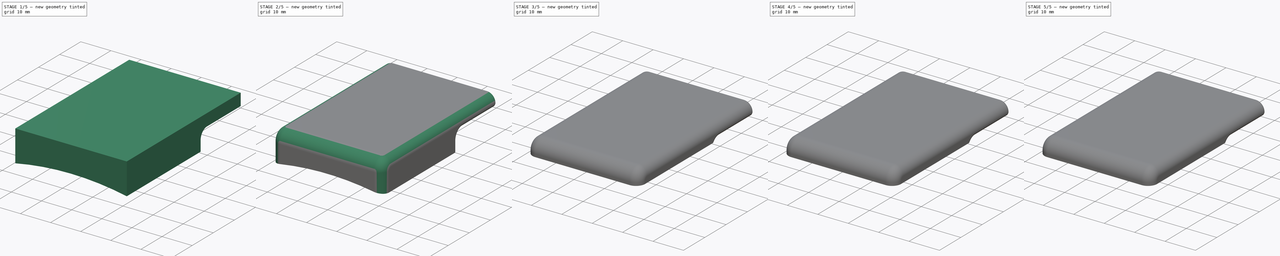
[diagram: build sequence overview — one tinted view per stage of 5, left to right]
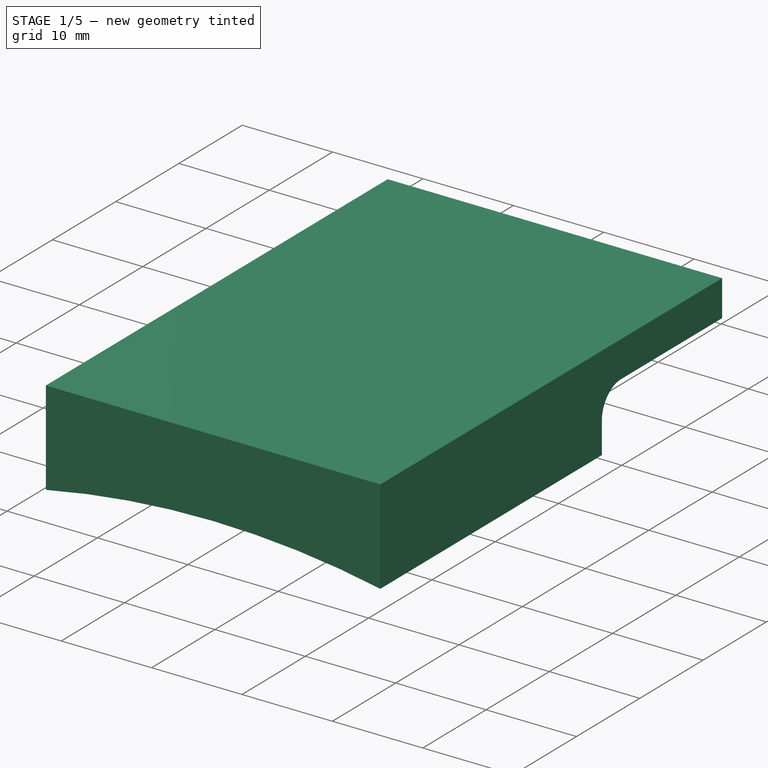
[diagram: stage 1 of 5 — iso view after this stage's code; geometry added in this stage tinted green]
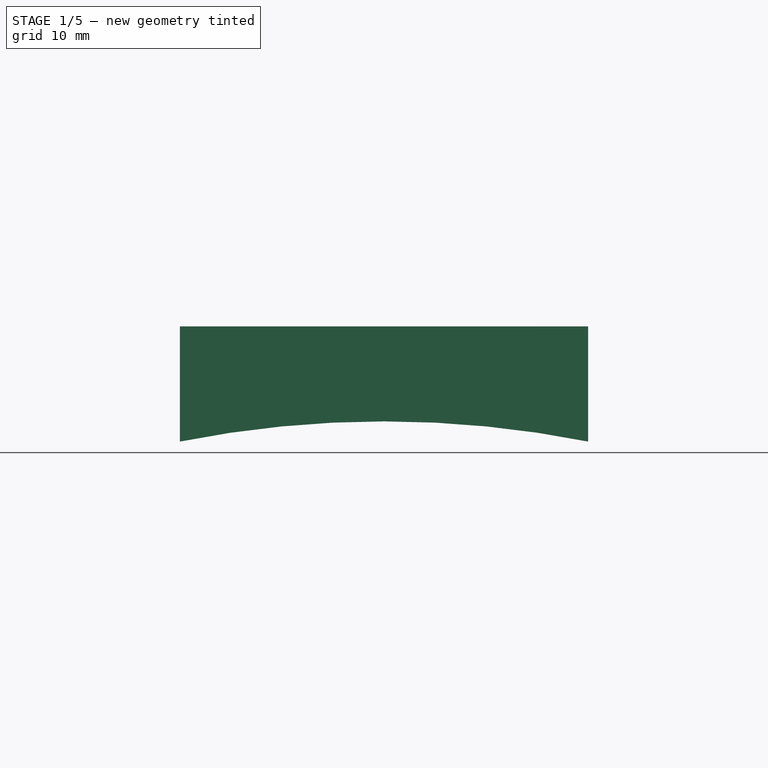
[diagram: stage 1 of 5 — front view after this stage's code; geometry added in this stage tinted green]
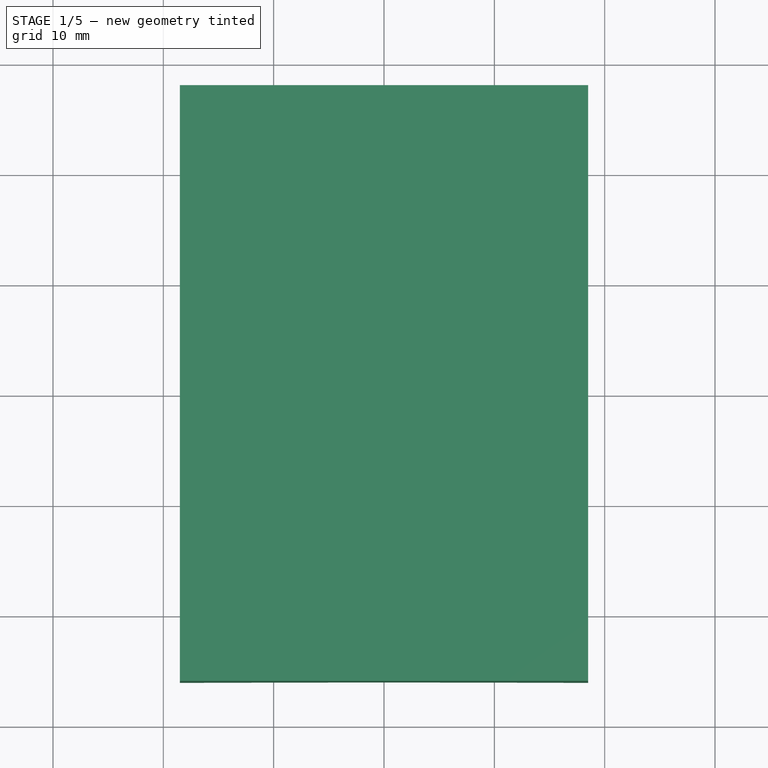
[diagram: stage 1 of 5 — top view after this stage's code; geometry added in this stage tinted green]
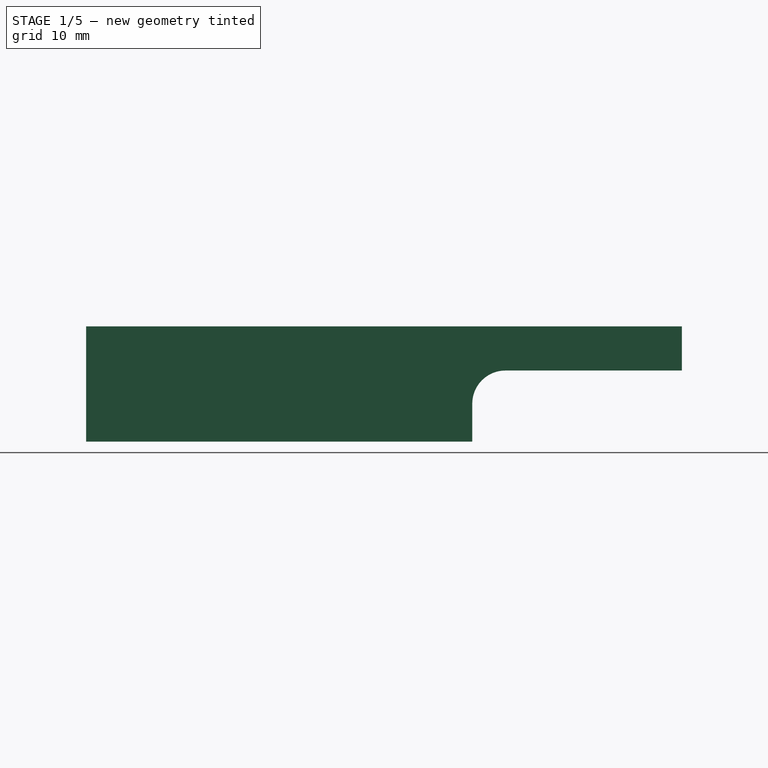
[diagram: stage 1 of 5 — right view after this stage's code; geometry added in this stage tinted green]
FCSTD DOCUMENT  (FreeCAD 0.17R13050 (Git))
Label: Limitter Small Upper
License: All rights reserved
LicenseURL: http://en.wikipedia.org/wiki/All_rights_reserved
objects: Sketcher::SketchObject×11, PartDesign::Pocket×10, Part::Feature×8, PartDesign::Fillet×8, PartDesign::Pad×1, App::Part×1, PartDesign::Body×1
note: 50 computed .brp shape members not serialized (recipe doc carries the construction recipe); baked Part::Feature solids carry a one-line shape summary decoded from their .brp

FEATURE [Sketcher::SketchObject] Sketch
  MapMode = 5
  Support = -> [XY_Plane]
  sketch-geometry (4):
    g0: LineSegment StartX=-18.5 StartY=38 StartZ=0 EndX=18.5 EndY=38 EndZ=0
    g1: LineSegment StartX=18.5 StartY=38 StartZ=0 EndX=18.5 EndY=-16 EndZ=0
    g2: LineSegment StartX=18.5 StartY=-16 StartZ=0 EndX=-18.5 EndY=-16 EndZ=0
    g3: LineSegment StartX=-18.5 StartY=-16 StartZ=0 EndX=-18.5 EndY=38 EndZ=0
  constraints (12):
    c: Coincident(g0,g1)
    c: Coincident(g1,g2)
    c: Coincident(g2,g3)
    c: Coincident(g3,g0)
    c: Horizontal(g0)
    c: Horizontal(g2)
    c: Vertical(g1)
    c: Vertical(g3)
    c: DistanceX(g0,g0) = 37
    c: DistanceX(g0,g-1) = 18.5
    c: DistanceY(g1,g1) = 54
    c: DistanceY(g1,g-1) = 16
FEATURE [PartDesign::Pad] Pad
  Length = 13
  Length2 = 100
  Profile = -> Sketch
  Type = 0
FEATURE [Part::Feature] Part__Feature  label="Arduino"
  Placement = pos=(-13,3.5,7.5) rot=(-1,0,0;1.5708rad)
  shape: bbox 33 x 17.8 x 1.8 mm, 449 faces (baked)
FEATURE [Part::Feature] Part__Feature003  label="Battery"
  Placement = pos=(0.5,-8.5,8) rot=(0,0,-1;1.5708rad)
  shape: bbox 31 x 10 x 4 mm, 10 faces (baked)
FEATURE [Part::Feature] Part__Feature004  label="BM019"
  Placement = pos=(0,16.5,10) rot=(0,0,1;1.5708rad)
  shape: bbox 27.94 x 38.1 x 1.95 mm, 118 faces (baked)
FEATURE [Part::Feature] Part__Feature005  label="HM-11"
  Placement = pos=(7,9.5,9.5) rot=(0,-1,0;3.14159rad)
  shape: bbox 13.5 x 18.5 x 1.3 mm, 176 faces (baked)
FEATURE [Part::Feature] Part__Feature006  label="Libre"
  Placement = pos=(0,38,1) rot=(0,0,1;0rad)
  shape: bbox 37.88 x 37.88 x 5 mm, 4 faces (baked)
FEATURE [Sketcher::SketchObject] Sketch001
  MapMode = 5
  Placement = pos=(0,-16,0) rot=(1,0,0;1.5708rad)
  Support = -> [Pad]
  sketch-geometry (2):
    g0: ArcOfCircle CenterX=2e-12 CenterY=-90 CenterZ=0 NormalX=0 NormalY=0 NormalZ=1 AngleXU=0 Radius=94.3941 StartAngle=1.24737 EndAngle=1.89422
    g1: LineSegment StartX=-30 StartY=-0.5 StartZ=0 EndX=30 EndY=-0.5 EndZ=0
  constraints (6):
    c: DistanceX(g-1,g0) = 30
    c: DistanceX(g0,g-1) = 30
    c: Coincident(g1,g0)
    c: Coincident(g1,g0)
    c: DistanceY(g0,g-1) = 90
    c: DistanceY(g0,g-1) = 0.5
FEATURE [PartDesign::Pocket] Pocket
  BaseFeature = -> Pad
  Length = 55
  Profile = -> Sketch001
  Type = 0
FEATURE [Sketcher::SketchObject] Sketch002
  MapMode = 5
  Placement = pos=(0,38,0) rot=(0,0.707107,0.707107;3.14159rad)
  Support = -> [Pocket]
  sketch-geometry (4):
    g0: LineSegment StartX=-18.5 StartY=9 StartZ=0 EndX=18.5 EndY=9 EndZ=0
    g1: LineSegment StartX=18.5 StartY=9 StartZ=0 EndX=18.5 EndY=2.5 EndZ=0
    g2: LineSegment StartX=18.5 StartY=2.5 StartZ=0 EndX=-18.5 EndY=2.5 EndZ=0
    g3: LineSegment StartX=-18.5 StartY=2.5 StartZ=0 EndX=-18.5 EndY=9 EndZ=0
  constraints (12):
    c: Coincident(g0,g1)
    c: Coincident(g1,g2)
    c: Coincident(g2,g3)
    c: Coincident(g3,g0)
    c: Horizontal(g0)
    c: Horizontal(g2)
    c: Vertical(g1)
    c: Vertical(g3)
    c: DistanceY(g-1,g0) = 9
    c: DistanceX(g0,g0) = 37
    c: DistanceX(g2,g-1) = 18.5
    c: DistanceY(g3,g3) = 6.5
FEATURE [PartDesign::Pocket] Pocket001
  BaseFeature = -> Pocket
  Length = 19
  Profile = -> Sketch002
  Type = 0
FEATURE [Part::Feature] Part__Feature007  label="_CUS-12-body"
  Placement = pos=(0,-1.4,0) rot=(0,0,1;0rad)
  shape: bbox 7.7 x 1.9 x 3.5 mm, 178 faces (baked)
FEATURE [Part::Feature] Part__Feature008  label="_CUS-12-slider"
  Placement = pos=(0.75,-0.2,0.8) rot=(0,0,1;0rad)
  shape: bbox 1.3 x 1.1 x 2.05 mm, 11 faces (baked)
FEATURE [App::Part] CUS_12TB  label="Switch"
  Group = -> [Part__Feature007,Part__Feature008]
  License = CC BY 3.0
  LicenseURL = http://creativecommons.org/licenses/by/3.0/
  Origin = -> Origin001
  Placement = pos=(13.7,10,5.5) rot=(0.57735,-0.57735,0.57735;4.18879rad)
FEATURE [Part::Feature] Part__Feature009  label="SparkCharger"
  Placement = pos=(-15,6,5.5) rot=(0,0,1;0rad)
  shape: bbox 23.28 x 10.15 x 4.321 mm, 447 faces (baked)
FEATURE [PartDesign::Fillet] Fillet
  Base = -> Pocket001 [Edge16]
  BaseFeature = -> Pocket001
  Radius = 3
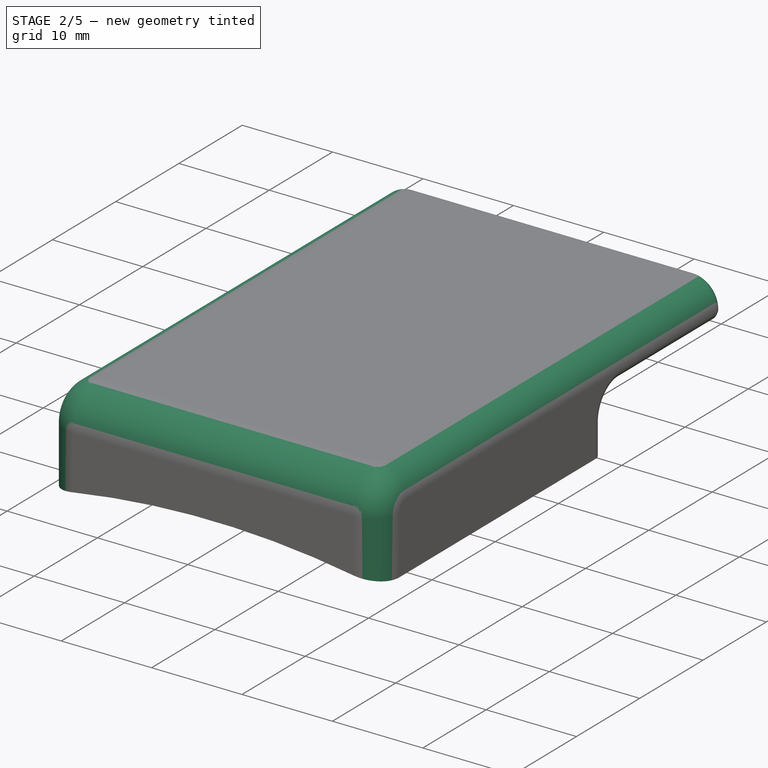
[diagram: stage 2 of 5 — iso view after this stage's code; geometry added in this stage tinted green]
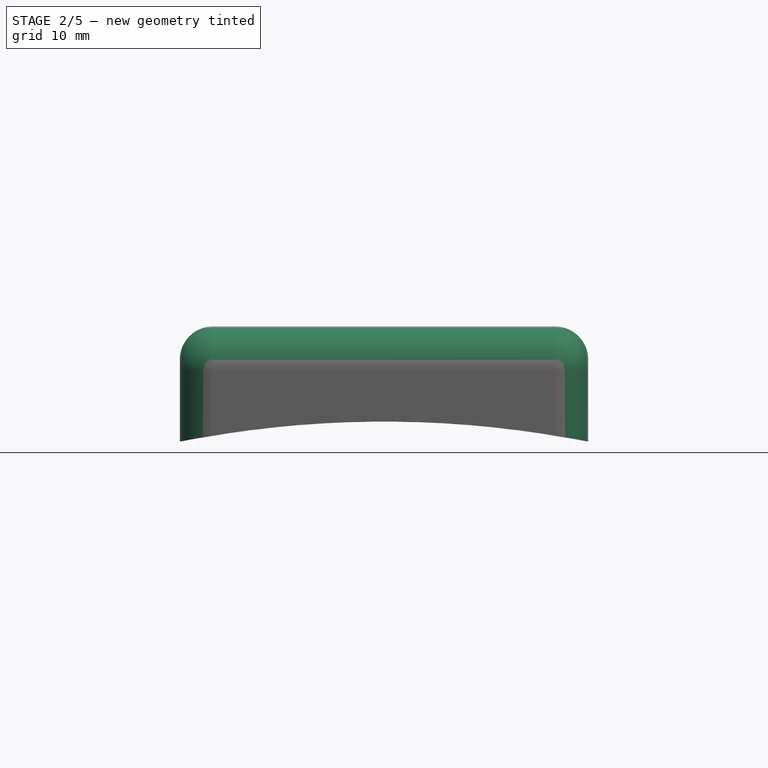
[diagram: stage 2 of 5 — front view after this stage's code; geometry added in this stage tinted green]
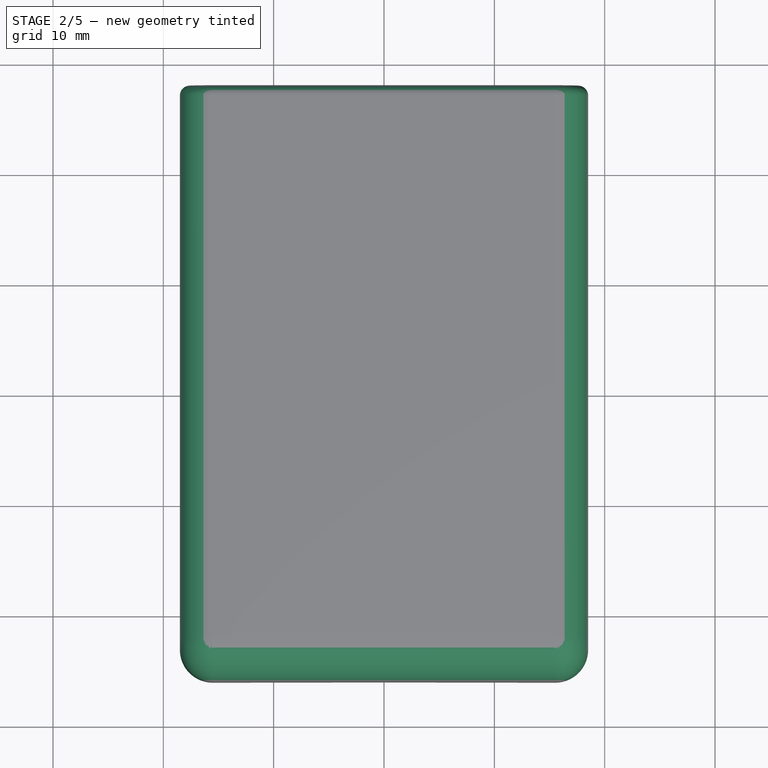
[diagram: stage 2 of 5 — top view after this stage's code; geometry added in this stage tinted green]
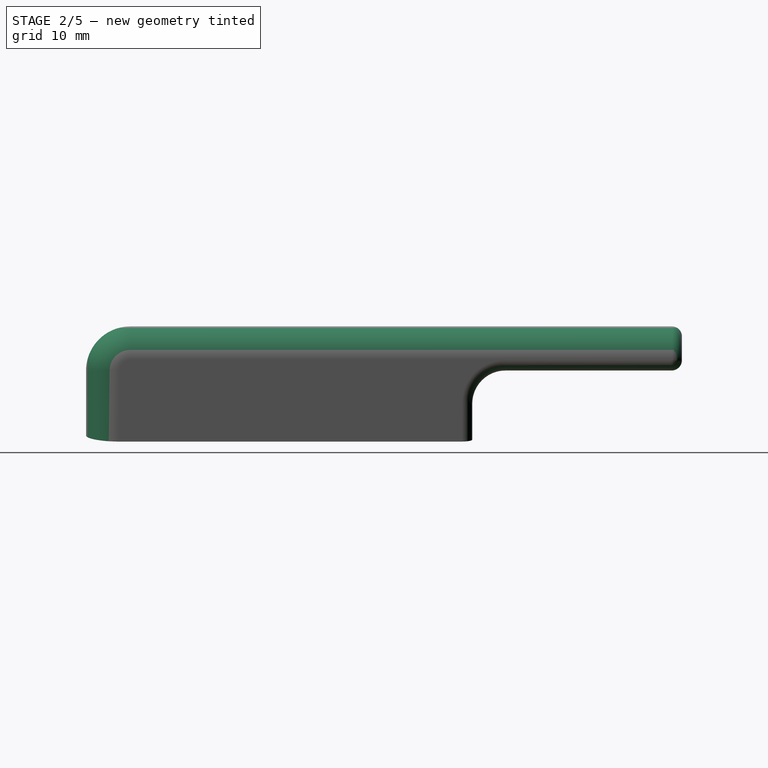
[diagram: stage 2 of 5 — right view after this stage's code; geometry added in this stage tinted green]
FEATURE [PartDesign::Fillet] Fillet001
  Base = -> Fillet [Edge17]
  BaseFeature = -> Fillet
  Radius = 4
FEATURE [PartDesign::Fillet] Fillet002
  Base = -> Fillet001 [Edge11,Edge1]
  BaseFeature = -> Fillet001
  Radius = 3
FEATURE [PartDesign::Fillet] Fillet003
  Base = -> Fillet002 [Edge5,Edge10,Edge21]
  BaseFeature = -> Fillet002
  Radius = 0.95
FEATURE [PartDesign::Fillet] Fillet004
  Base = -> Fillet003 [Edge12]
  BaseFeature = -> Fillet003
  Radius = 0.9
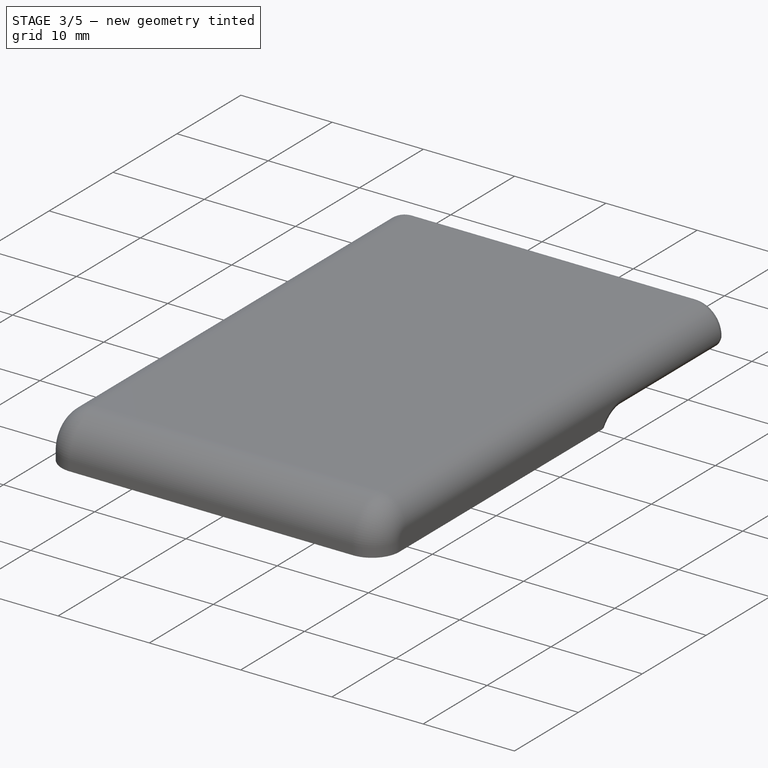
[diagram: stage 3 of 5 — iso view after this stage's code; geometry added in this stage tinted green]
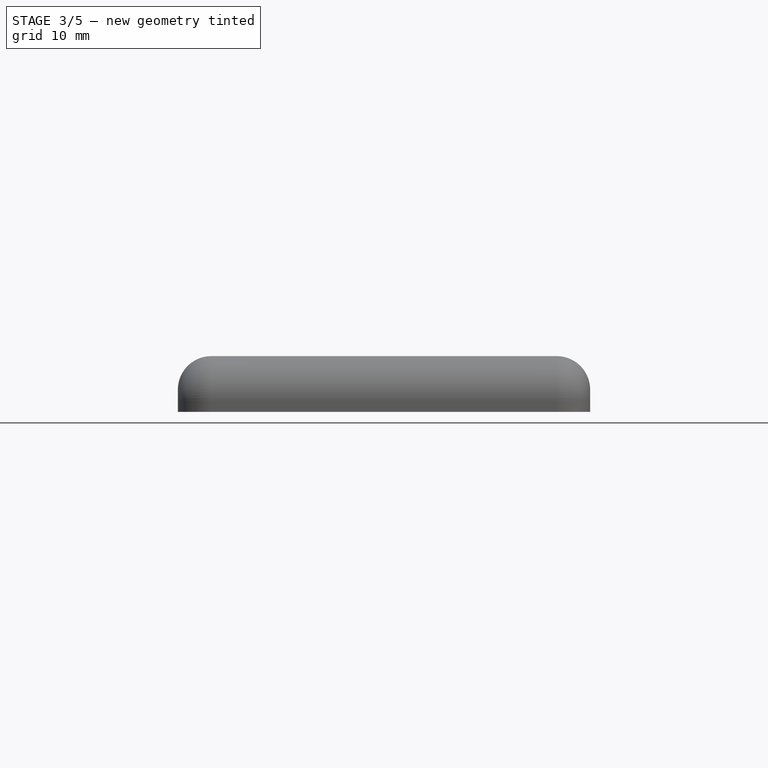
[diagram: stage 3 of 5 — front view after this stage's code; geometry added in this stage tinted green]
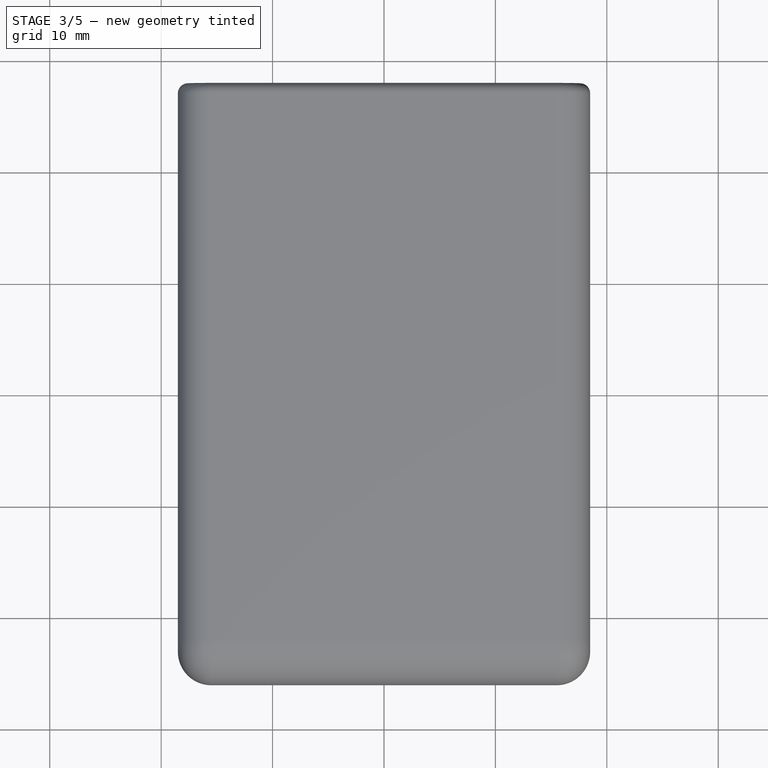
[diagram: stage 3 of 5 — top view after this stage's code; geometry added in this stage tinted green]
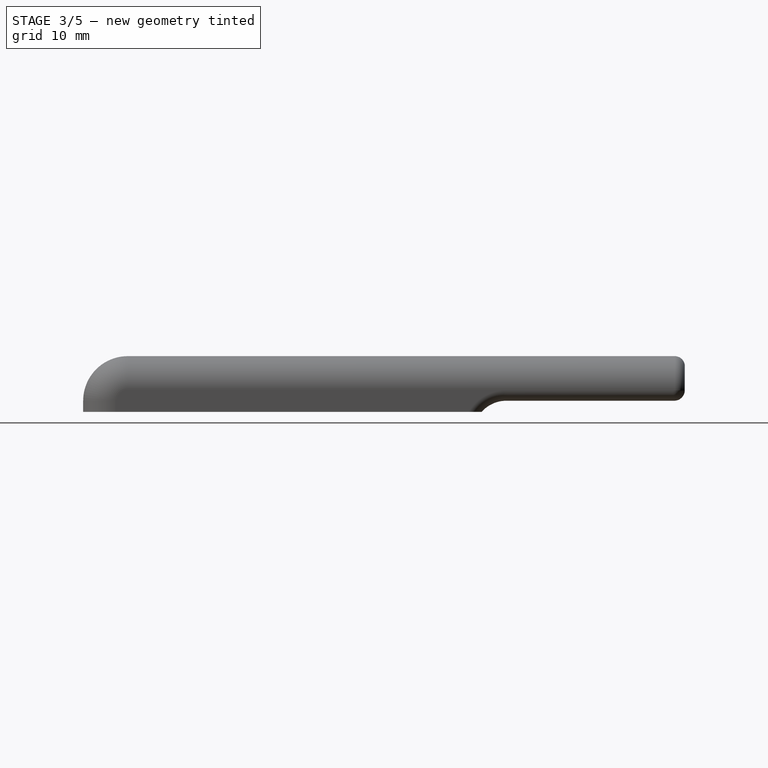
[diagram: stage 3 of 5 — right view after this stage's code; geometry added in this stage tinted green]
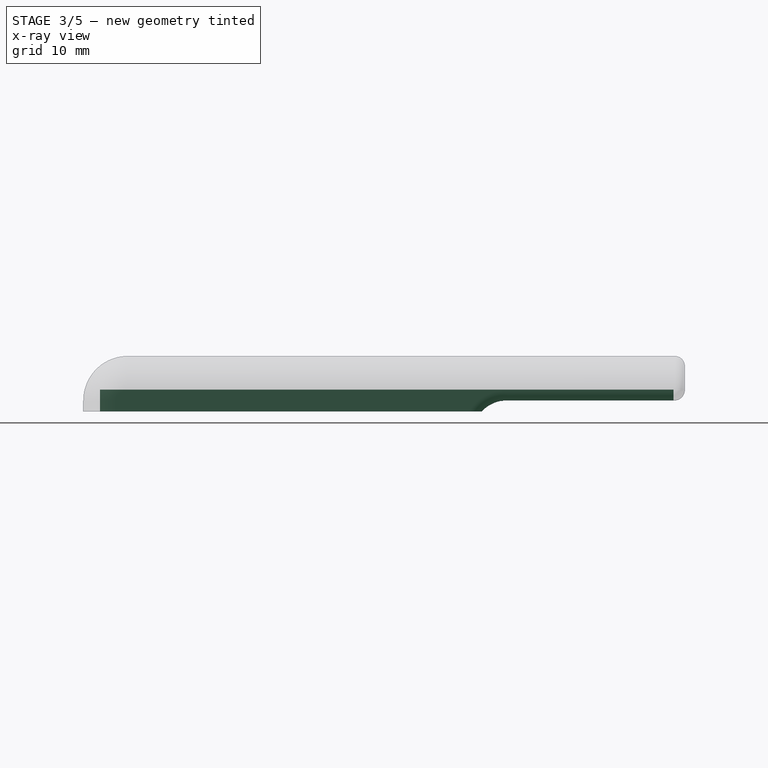
[diagram: stage 3 of 5 — x-ray composite at the right view; earlier geometry ghosted, this stage's added geometry solid]
FEATURE [PartDesign::Fillet] Fillet005  label="Full Body"
  Base = -> Fillet004 [Edge7,Edge29]
  BaseFeature = -> Fillet004
  Radius = 2
FEATURE [Sketcher::SketchObject] Sketch014
  MapMode = 5
  Placement = pos=(0,-16,0) rot=(1,0,0;1.5708rad)
  Support = -> [Fillet005]
  sketch-geometry (4):
    g0: LineSegment StartX=-20 StartY=8 StartZ=0 EndX=20 EndY=8 EndZ=0
    g1: LineSegment StartX=20 StartY=8 StartZ=0 EndX=20 EndY=2.5 EndZ=0
    g2: LineSegment StartX=20 StartY=2.5 StartZ=0 EndX=-20 EndY=2.5 EndZ=0
    g3: LineSegment StartX=-20 StartY=2.5 StartZ=0 EndX=-20 EndY=8 EndZ=0
  constraints (12):
    c: Coincident(g0,g1)
    c: Coincident(g1,g2)
    c: Coincident(g2,g3)
    c: Coincident(g3,g0)
    c: Horizontal(g0)
    c: Horizontal(g2)
    c: Vertical(g1)
    c: Vertical(g3)
    c: DistanceX(g0,g0) = 40
    c: DistanceX(g-1,g1) = 20
    c: DistanceY(g1,g1) = 5.5
    c: DistanceY(g-1,g1) = 2.5
FEATURE [PartDesign::Pocket] Pocket002
  BaseFeature = -> Fillet005
  Length = 36
  Profile = -> Sketch014
  Type = 0
FEATURE [Sketcher::SketchObject] Sketch015
  MapMode = 5
  Placement = pos=(0,0,8) rot=(1,0,0;3.14159rad)
  Support = -> [Pocket002]
  sketch-geometry (4):
    g0: LineSegment StartX=-17 StartY=14.5 StartZ=0 EndX=17 EndY=14.5 EndZ=0
    g1: LineSegment StartX=17 StartY=14.5 StartZ=0 EndX=17 EndY=-37 EndZ=0
    g2: LineSegment StartX=17 StartY=-37 StartZ=0 EndX=-17 EndY=-37 EndZ=0
    g3: LineSegment StartX=-17 StartY=-37 StartZ=0 EndX=-17 EndY=14.5 EndZ=0
  constraints (12):
    c: Coincident(g0,g1)
    c: Coincident(g1,g2)
    c: Coincident(g2,g3)
    c: Coincident(g3,g0)
    c: Horizontal(g0)
    c: Horizontal(g2)
    c: Vertical(g1)
    c: Vertical(g3)
    c: DistanceX(g0,g-1) = 17
    c: DistanceX(g0,g0) = 34
    c: DistanceY(g-1,g0) = 14.5
    c: DistanceY(g1,g1) = 51.5
FEATURE [PartDesign::Pocket] Pocket003
  BaseFeature = -> Pocket002
  Length = 2
  Profile = -> Sketch015
  Type = 0
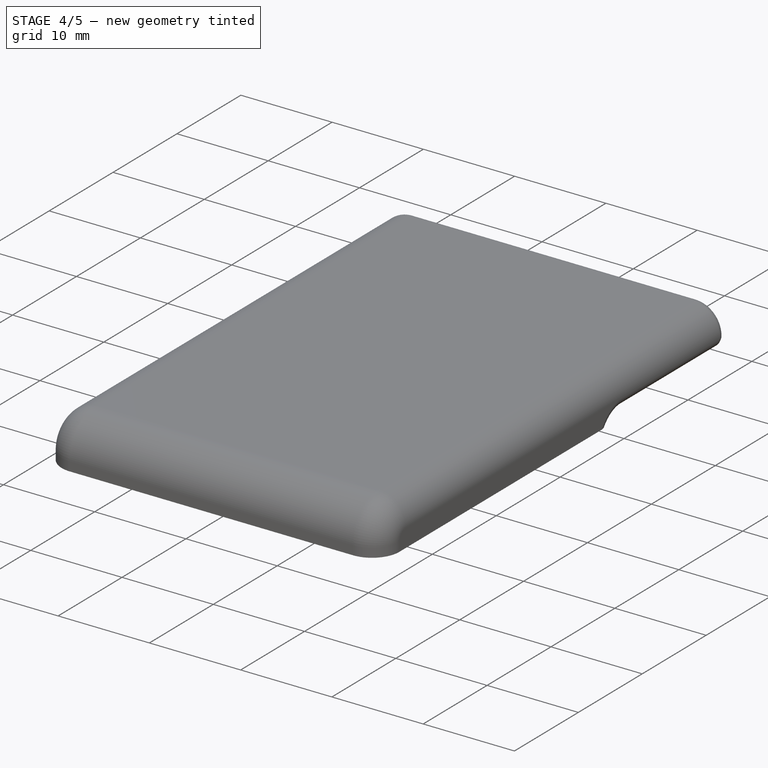
[diagram: stage 4 of 5 — iso view after this stage's code; geometry added in this stage tinted green]
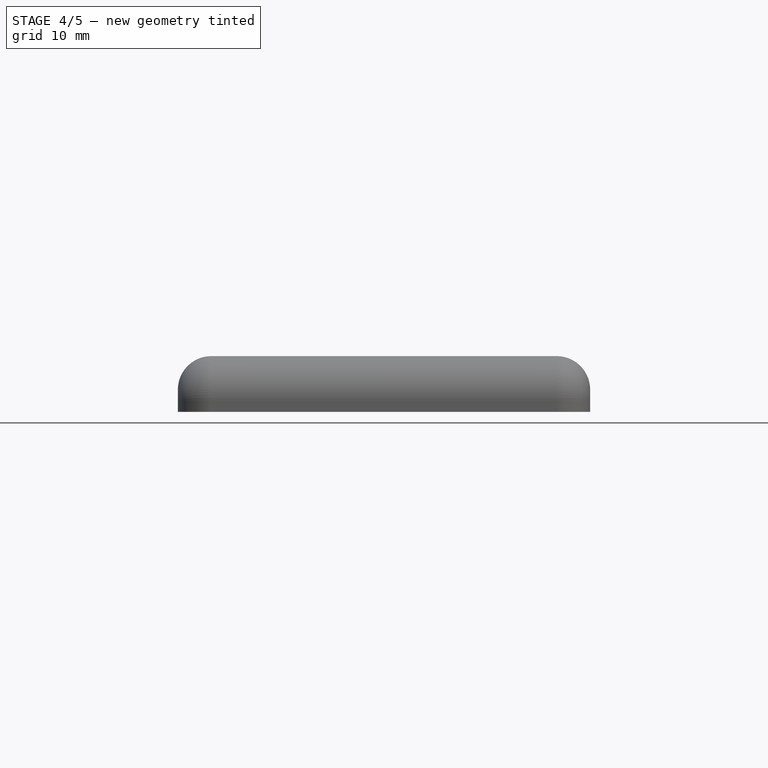
[diagram: stage 4 of 5 — front view after this stage's code; geometry added in this stage tinted green]
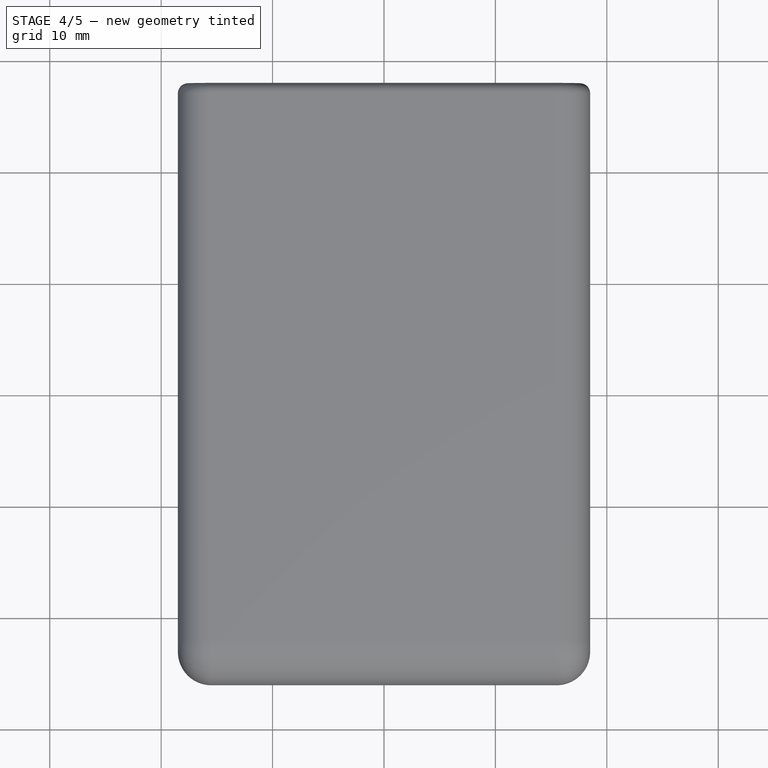
[diagram: stage 4 of 5 — top view after this stage's code; geometry added in this stage tinted green]
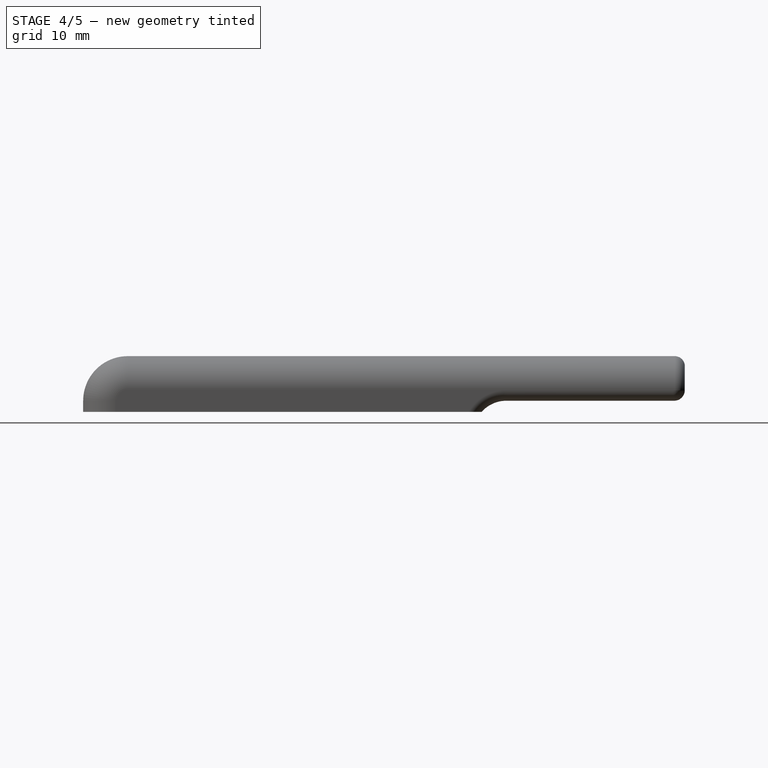
[diagram: stage 4 of 5 — right view after this stage's code; geometry added in this stage tinted green]
FEATURE [Sketcher::SketchObject] Sketch016
  MapMode = 5
  Placement = pos=(0,0,10) rot=(1,0,0;3.14159rad)
  Support = -> [Pocket003]
  sketch-geometry (9):
    g0: LineSegment StartX=-15.75 StartY=13.5 StartZ=0 EndX=15.75 EndY=13.5 EndZ=0
    g1: LineSegment StartX=15.75 StartY=13.5 StartZ=0 EndX=15.75 EndY=-4.5 EndZ=0
    g2: LineSegment StartX=15.75 StartY=-4.5 StartZ=0 EndX=14.25 EndY=-4.5 EndZ=0
    g3: LineSegment StartX=14.25 StartY=-4.5 StartZ=0 EndX=14.25 EndY=-36 EndZ=0
    g4: LineSegment StartX=14.25 StartY=-36 StartZ=0 EndX=-14.25 EndY=-36 EndZ=0
    g5: LineSegment StartX=-14.25 StartY=-36 StartZ=0 EndX=-14.25 EndY=-4.5 EndZ=0
    g6: LineSegment StartX=-14.25 StartY=-4.5 StartZ=0 EndX=-15.75 EndY=-4.5 EndZ=0
    g7: LineSegment StartX=-15.75 StartY=-4.5 StartZ=0 EndX=-15.75 EndY=13.5 EndZ=0
    g8: LineSegment StartX=-15.75 StartY=13.5 StartZ=0 EndX=15.75 EndY=13.5 EndZ=0
  constraints (27):
    c: Horizontal(g0)
    c: Coincident(g0,g1)
    c: Vertical(g1)
    c: Coincident(g1,g2)
    c: Horizontal(g2)
    c: Coincident(g2,g3)
    c: Vertical(g3)
    c: Coincident(g3,g4)
    c: Horizontal(g4)
    c: Coincident(g4,g5)
    c: Vertical(g5)
    c: Coincident(g5,g6)
    c: Horizontal(g6)
    c: Coincident(g6,g7)
    c: Vertical(g7)
    c: Coincident(g7,g8)
    c: Coincident(g8,g0)
    c: Horizontal(g8)
    c: DistanceY(g-1,g0) = 13.5
    c: DistanceY(g1,g1) = 18
    c: DistanceY(g3,g3) = 31.5
    c: DistanceX(g4,g4) = 28.5
    c: DistanceX(g-1,g2) = 14.25
    c: DistanceX(g2,g2) = 1.5
    c: Equal(g2,g6)
    c: Equal(g7,g1)
    c: Coincident(g0,g7)
FEATURE [PartDesign::Pocket] Pocket004
  BaseFeature = -> Pocket003
  Length = 2
  Profile = -> Sketch016
  Type = 0
FEATURE [PartDesign::Fillet] Fillet006
  Base = -> Pocket004 [Edge102]
  BaseFeature = -> Pocket004
  Radius = 1
FEATURE [PartDesign::Fillet] Fillet007
  Base = -> Fillet006 [Edge31,Edge29]
  BaseFeature = -> Fillet006
  Radius = 1
FEATURE [Sketcher::SketchObject] Sketch017
  MapMode = 5
  Placement = pos=(0,0,10) rot=(1,0,0;3.14159rad)
  Support = -> [Fillet007]
  sketch-geometry (8):
    g0: LineSegment StartX=-14.25 StartY=-36 StartZ=0 EndX=-15.5 EndY=-36 EndZ=0
    g1: LineSegment StartX=-15.5 StartY=-36 StartZ=0 EndX=-15.5 EndY=-26 EndZ=0
    g2: LineSegment StartX=-15.5 StartY=-26 StartZ=0 EndX=-14.25 EndY=-26 EndZ=0
    g3: LineSegment StartX=-14.25 StartY=-26 StartZ=0 EndX=-14.25 EndY=-36 EndZ=0
    g4: LineSegment StartX=14.25 StartY=-36 StartZ=0 EndX=15.5 EndY=-36 EndZ=0
    g5: LineSegment StartX=15.5 StartY=-36 StartZ=0 EndX=15.5 EndY=-26 EndZ=0
    g6: LineSegment StartX=15.5 StartY=-26 StartZ=0 EndX=14.25 EndY=-26 EndZ=0
    g7: LineSegment StartX=14.25 StartY=-26 StartZ=0 EndX=14.25 EndY=-36 EndZ=0
  constraints (24):
    c: Coincident(g0,g1)
    c: Coincident(g1,g2)
    c: Coincident(g2,g3)
    c: Coincident(g3,g0)
    c: Horizontal(g0)
    c: Horizontal(g2)
    c: Vertical(g1)
    c: Vertical(g3)
    c: Coincident(g4,g5)
    c: Coincident(g5,g6)
    c: Coincident(g6,g7)
    c: Coincident(g7,g4)
    c: Horizontal(g4)
    c: Horizontal(g6)
    c: Vertical(g5)
    c: Vertical(g7)
    c: DistanceX(g6,g6) = 1.25
    c: Equal(g6,g2)
    c: DistanceY(g5,g5) = 10
    c: Equal(g5,g3)
    c: DistanceY(g1,g-1) = 26
    c: DistanceX(g1,g-1) = 15.5
    c: DistanceX(g0,g4) = 28.5
    c: DistanceY(g4,g0) = 0
FEATURE [PartDesign::Pocket] Pocket005
  BaseFeature = -> Fillet007
  Length = 2
  Profile = -> Sketch017
  Type = 0
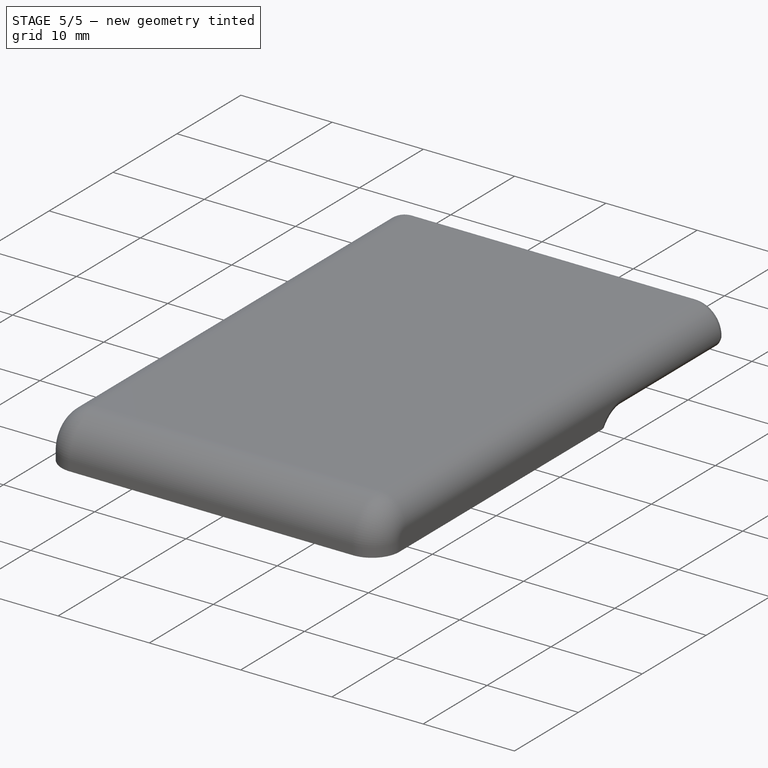
[diagram: stage 5 of 5 — iso view after this stage's code; geometry added in this stage tinted green]
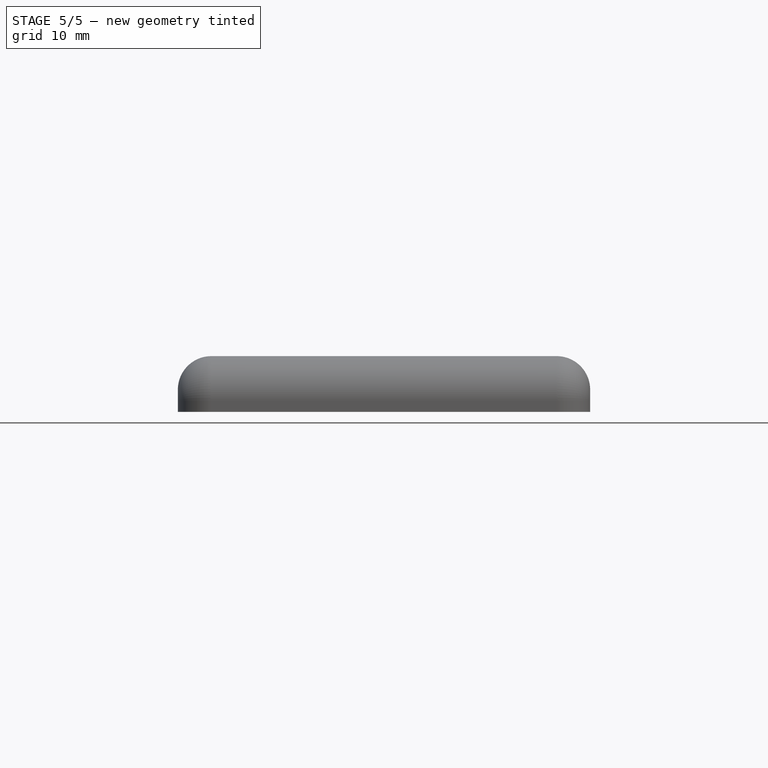
[diagram: stage 5 of 5 — front view after this stage's code; geometry added in this stage tinted green]
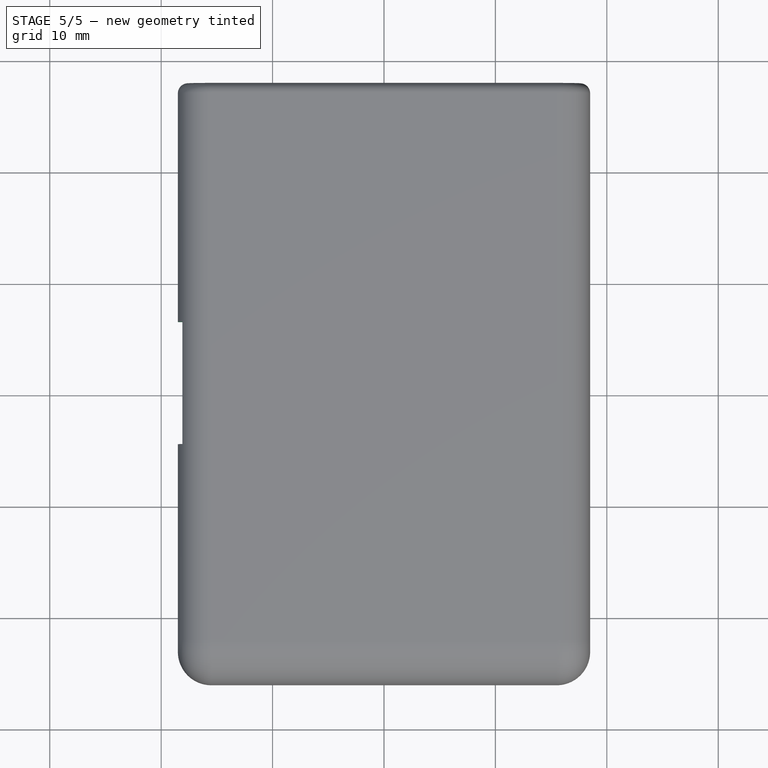
[diagram: stage 5 of 5 — top view after this stage's code; geometry added in this stage tinted green]
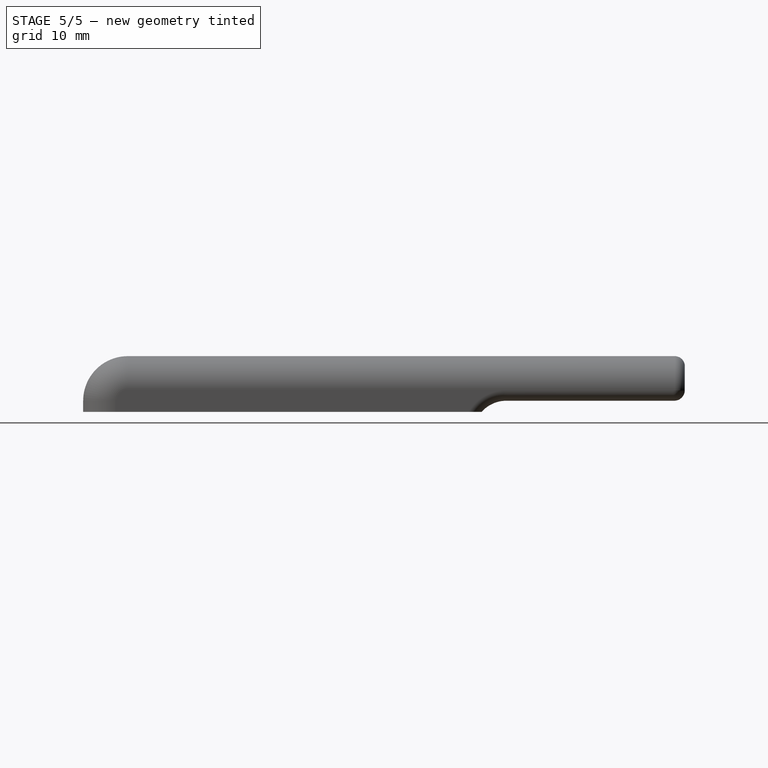
[diagram: stage 5 of 5 — right view after this stage's code; geometry added in this stage tinted green]
FEATURE [Sketcher::SketchObject] Sketch018
  MapMode = 5
  Placement = pos=(-18.5,0,0) rot=(0.57735,-0.57735,-0.57735;2.0944rad)
  Support = -> [Pocket005]
  sketch-geometry (4):
    g0: LineSegment StartX=-16.6 StartY=11.5 StartZ=0 EndX=-5.6 EndY=11.5 EndZ=0
    g1: LineSegment StartX=-5.6 StartY=11.5 StartZ=0 EndX=-5.6 EndY=5.5 EndZ=0
    g2: LineSegment StartX=-5.6 StartY=5.5 StartZ=0 EndX=-16.6 EndY=5.5 EndZ=0
    g3: LineSegment StartX=-16.6 StartY=5.5 StartZ=0 EndX=-16.6 EndY=11.5 EndZ=0
  constraints (12):
    c: Coincident(g0,g1)
    c: Coincident(g1,g2)
    c: Coincident(g2,g3)
    c: Coincident(g3,g0)
    c: Horizontal(g0)
    c: Horizontal(g2)
    c: Vertical(g1)
    c: Vertical(g3)
    c: DistanceX(g0,g0) = 11
    c: DistanceY(g1,g1) = 6
    c: DistanceY(g-1,g1) = 5.5
    c: DistanceX(g1,g-1) = 5.6
FEATURE [PartDesign::Pocket] Pocket006
  BaseFeature = -> Pocket005
  Length = 2.5
  Profile = -> Sketch018
  Type = 0
FEATURE [Sketcher::SketchObject] Sketch019
  MapMode = 5
  Placement = pos=(15.5,0,0) rot=(0.57735,-0.57735,-0.57735;2.0944rad)
  Support = -> [Pocket006]
  sketch-geometry (4):
    g0: LineSegment StartX=-36 StartY=11.5 StartZ=0 EndX=-26 EndY=11.5 EndZ=0
    g1: LineSegment StartX=-26 StartY=11.5 StartZ=0 EndX=-26 EndY=10.5 EndZ=0
    g2: LineSegment StartX=-26 StartY=10.5 StartZ=0 EndX=-36 EndY=10.5 EndZ=0
    g3: LineSegment StartX=-36 StartY=10.5 StartZ=0 EndX=-36 EndY=11.5 EndZ=0
  constraints (12):
    c: Coincident(g0,g1)
    c: Coincident(g1,g2)
    c: Coincident(g2,g3)
    c: Coincident(g3,g0)
    c: Horizontal(g0)
    c: Horizontal(g2)
    c: Vertical(g1)
    c: Vertical(g3)
    c: DistanceX(g0,g0) = 10
    c: DistanceX(g0,g-1) = 26
    c: DistanceY(g-1,g0) = 11.5
    c: DistanceY(g1,g1) = 1
FEATURE [PartDesign::Pocket] Pocket007
  BaseFeature = -> Pocket006
  Length = 0.5
  Profile = -> Sketch019
  Type = 0
FEATURE [Sketcher::SketchObject] Sketch020
  MapMode = 5
  Placement = pos=(-15.5,0,0) rot=(0.57735,0.57735,0.57735;2.0944rad)
  Support = -> [Pocket007]
  sketch-geometry (4):
    g0: LineSegment StartX=26 StartY=11.5 StartZ=0 EndX=36 EndY=11.5 EndZ=0
    g1: LineSegment StartX=36 StartY=11.5 StartZ=0 EndX=36 EndY=10.5 EndZ=0
    g2: LineSegment StartX=36 StartY=10.5 StartZ=0 EndX=26 EndY=10.5 EndZ=0
    g3: LineSegment StartX=26 StartY=10.5 StartZ=0 EndX=26 EndY=11.5 EndZ=0
  constraints (12):
    c: Coincident(g0,g1)
    c: Coincident(g1,g2)
    c: Coincident(g2,g3)
    c: Coincident(g3,g0)
    c: Horizontal(g0)
    c: Horizontal(g2)
    c: Vertical(g1)
    c: Vertical(g3)
    c: DistanceX(g-1,g0) = 26
    c: DistanceY(g-1,g0) = 11.5
    c: DistanceY(g1,g1) = 1
    c: DistanceX(g0,g0) = 10
FEATURE [PartDesign::Pocket] Pocket008
  BaseFeature = -> Pocket007
  Length = 0.5
  Profile = -> Sketch020
  Type = 0
FEATURE [Sketcher::SketchObject] Sketch021
  MapMode = 5
  Placement = pos=(0,-14.5,0) rot=(0,0.707107,0.707107;3.14159rad)
  Support = -> [Pocket008]
  sketch-geometry (4):
    g0: LineSegment StartX=-5 StartY=10 StartZ=0 EndX=5 EndY=10 EndZ=0
    g1: LineSegment StartX=5 StartY=10 StartZ=0 EndX=5 EndY=9 EndZ=0
    g2: LineSegment StartX=5 StartY=9 StartZ=0 EndX=-5 EndY=9 EndZ=0
    g3: LineSegment StartX=-5 StartY=9 StartZ=0 EndX=-5 EndY=10 EndZ=0
  constraints (12):
    c: Coincident(g0,g1)
    c: Coincident(g1,g2)
    c: Coincident(g2,g3)
    c: Coincident(g3,g0)
    c: Horizontal(g0)
    c: Horizontal(g2)
    c: Vertical(g1)
    c: Vertical(g3)
    c: DistanceX(g2,g2) = 10
    c: DistanceX(g-1,g1) = 5
    c: DistanceY(g3,g3) = 1
    c: DistanceY(g-1,g1) = 9
FEATURE [PartDesign::Pocket] Pocket009  label="LT_Upper"
  BaseFeature = -> Pocket008
  Length = 0.75
  Profile = -> Sketch021
  Type = 0
FEATURE [PartDesign::Body] Body
  Group = -> [Sketch,Pad,Sketch001,Pocket,Sketch002,Pocket001,Fillet,Fillet001,Fillet002,Fillet003,Fillet004,Fillet005,Sketch014,Pocket002,Sketch015,Pocket003,Sketch016,Pocket004,Fillet006,Fillet007,Sketch017,Pocket005,Sketch018,Pocket006,Sketch019,Pocket007,Sketch020,Pocket008,Sketch021,Pocket009]
  Origin = -> Origin
  Tip = -> Pocket009
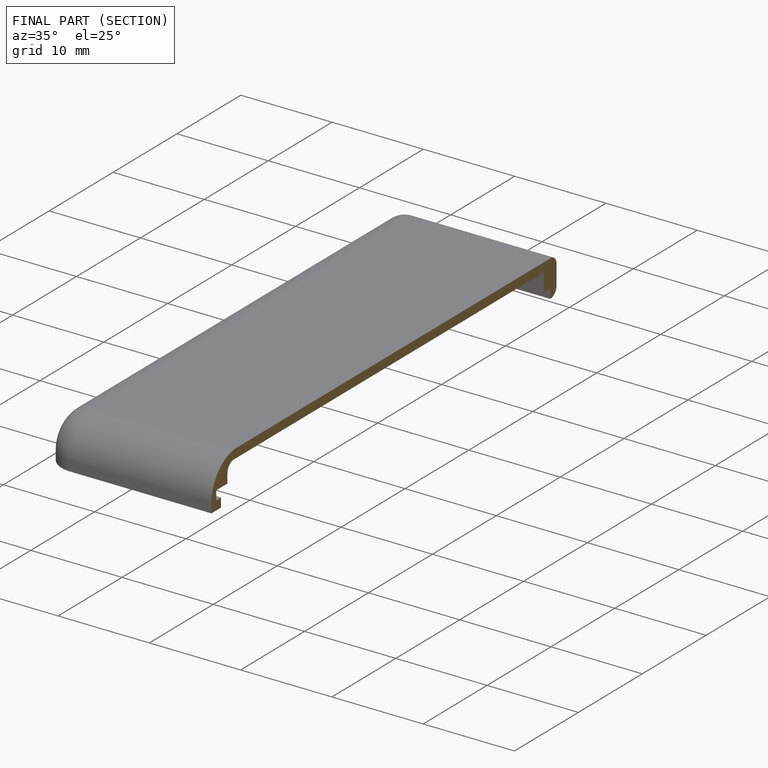
[diagram: finished part — half-section view (interior)]
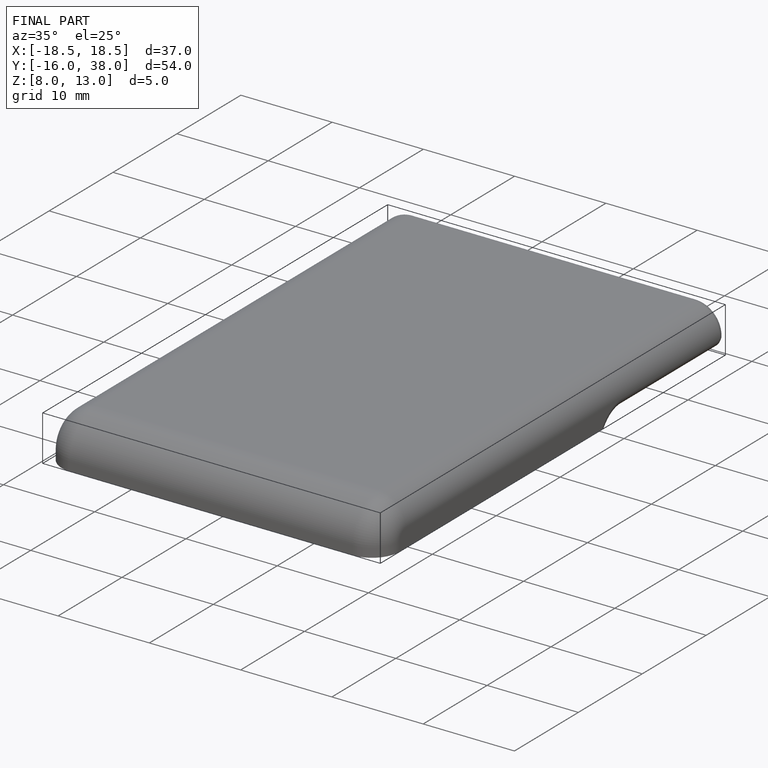
[diagram: finished part — iso view with bounding-box wireframe]
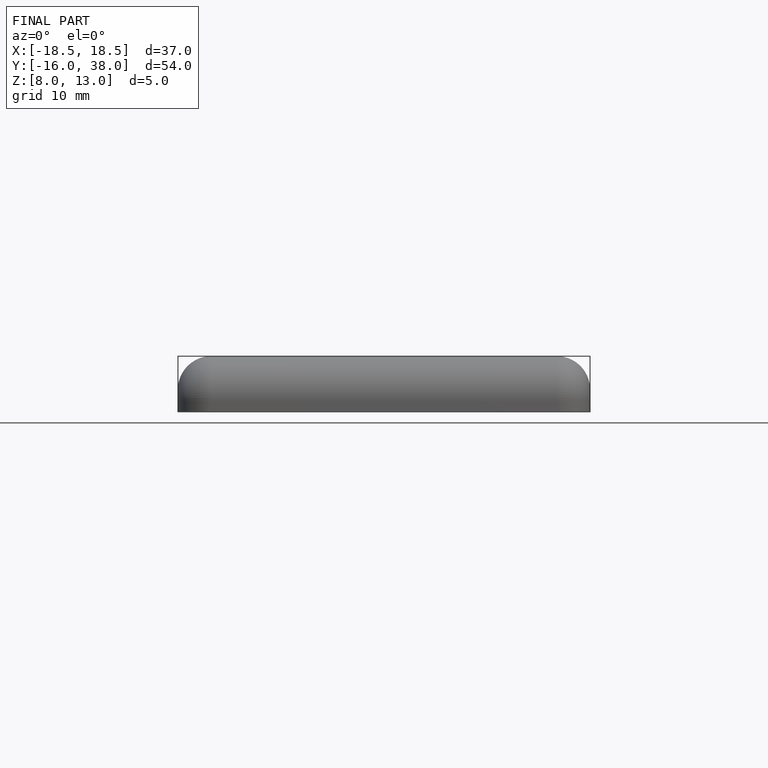
[diagram: finished part — front view with bounding-box wireframe]
